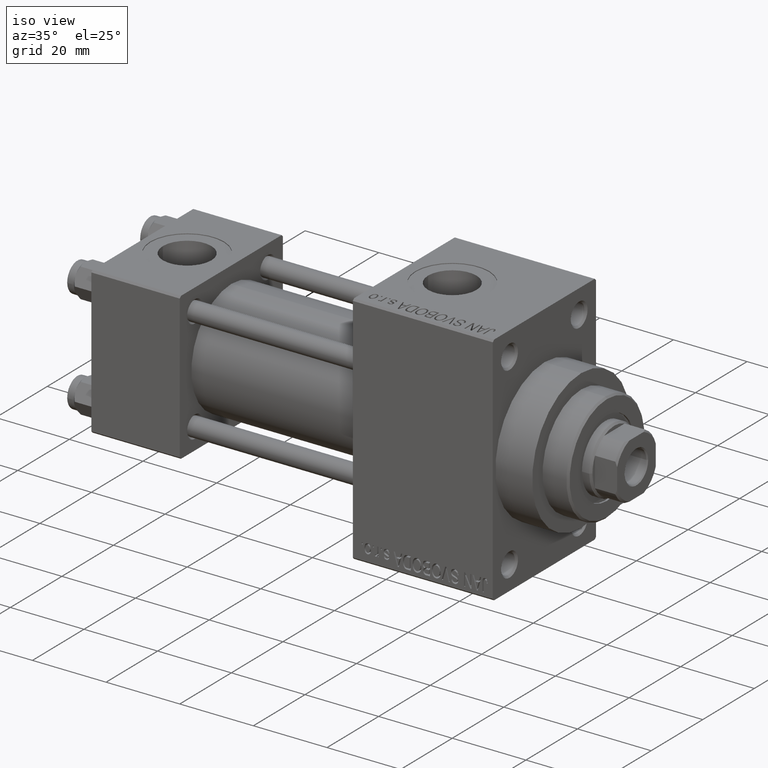
[diagram: clean part render]
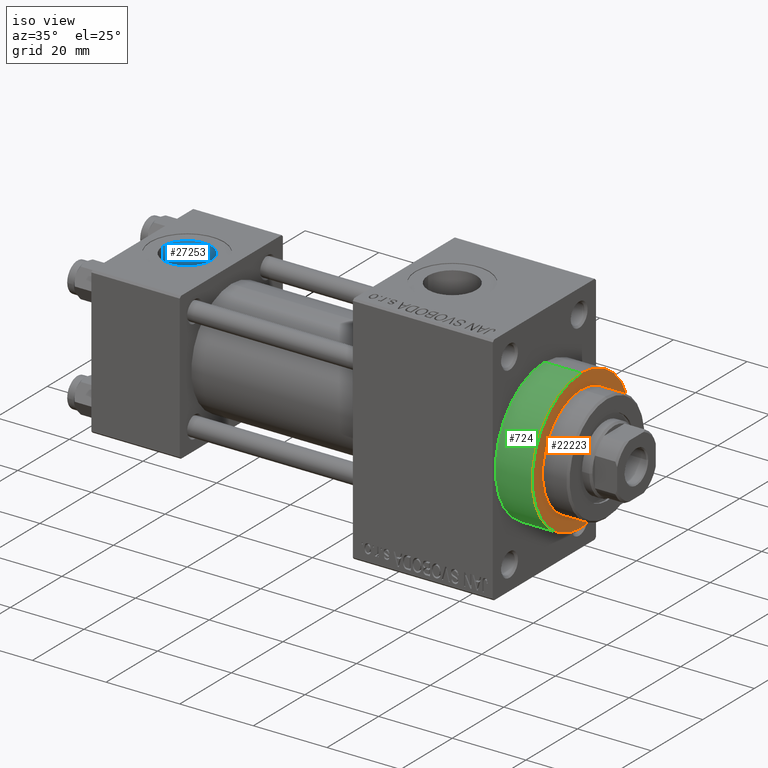
[diagram: same view with three faces highlighted in distinct colors, each labeled with its STEP entity id]
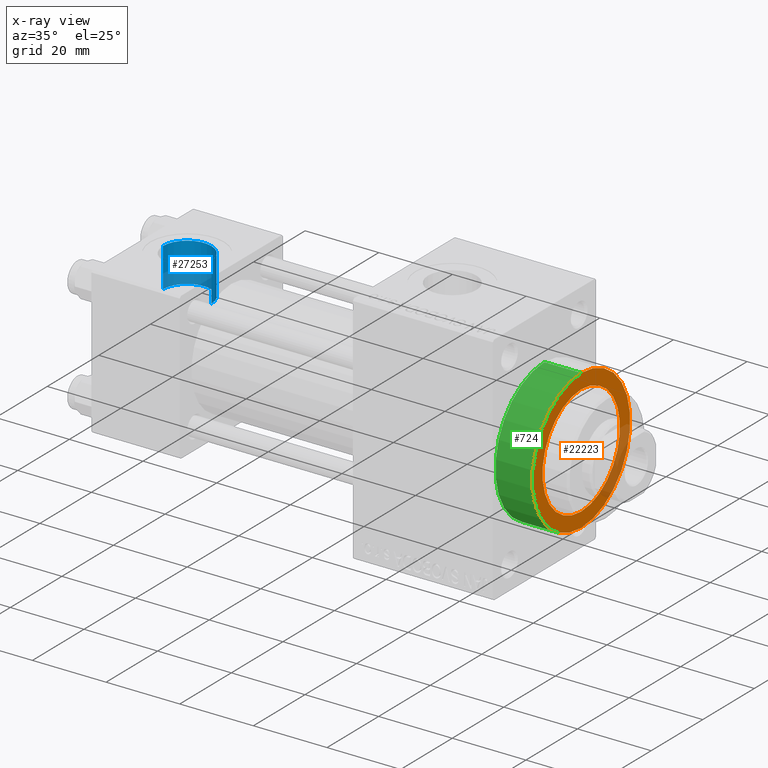
[diagram: x-ray of the same camera — body ghosted, the three highlighted faces saturated]
A machine part, iso view with three faces highlighted in distinct colors.
The next image is the same camera in x-ray (body ghosted, the three faces saturated) — at least one of them is partly hidden behind the body in this view.
Their STEP definitions:

[orange] entity #22223 — the highlighted planar face has unit normal (1, 0, 0).
#354 = AXIS2_PLACEMENT_3D ( 'NONE', #45953, #28199, #42982 ) ;
#2514 = DIRECTION ( 'NONE',  ( 1.000000000000000000, 0.000000000000000000, 0.000000000000000000 ) ) ;
#3104 = FACE_OUTER_BOUND ( 'NONE', #22787, .T. ) ;
#4674 = VERTEX_POINT ( 'NONE', #20267 ) ;
#9021 = EDGE_CURVE ( 'NONE', #31705, #4674, #21604, .T. ) ;
#9916 = DIRECTION ( 'NONE',  ( 0.000000000000000000, 0.000000000000000000, -1.000000000000000000 ) ) ;
#12551 = EDGE_CURVE ( 'NONE', #4674, #31705, #15337, .T. ) ;
#13365 = CARTESIAN_POINT ( 'NONE',  ( 119.0000000000000142, 0.000000000000000000, 0.000000000000000000 ) ) ;
#15337 = CIRCLE ( 'NONE', #42837, 19.00000000000000000 ) ;
#17429 = VERTEX_POINT ( 'NONE', #32329 ) ;
#17458 = DIRECTION ( 'NONE',  ( 1.000000000000000000, 0.000000000000000000, 0.000000000000000000 ) ) ;
#20267 = CARTESIAN_POINT ( 'NONE',  ( 119.0000000000000142, 2.326828918379970970E-15, -19.00000000000000000 ) ) ;
#20414 = CARTESIAN_POINT ( 'NONE',  ( 119.0000000000000142, 1.836970198721029589E-15, 15.00000000000000000 ) ) ;
#20463 = EDGE_LOOP ( 'NONE', ( #25133, #41568 ) ) ;
#21604 = CIRCLE ( 'NONE', #354, 19.00000000000000000 ) ;
#22223 = ADVANCED_FACE ( 'NONE', ( #29446, #3104 ), #33384, .T. ) ;
#22263 = CIRCLE ( 'NONE', #46661, 15.00000000000000000 ) ;
#22787 = EDGE_LOOP ( 'NONE', ( #34558, #30265 ) ) ;
#24339 = DIRECTION ( 'NONE',  ( 0.000000000000000000, 0.000000000000000000, -1.000000000000000000 ) ) ;
#25133 = ORIENTED_EDGE ( 'NONE', *, *, #30397, .F. ) ;
#25738 = DIRECTION ( 'NONE',  ( 1.000000000000000000, 0.000000000000000000, 0.000000000000000000 ) ) ;
#28199 = DIRECTION ( 'NONE',  ( 1.000000000000000000, 0.000000000000000000, 0.000000000000000000 ) ) ;
#29446 = FACE_BOUND ( 'NONE', #20463, .T. ) ;
#29682 = CARTESIAN_POINT ( 'NONE',  ( 119.0000000000000142, 0.000000000000000000, 0.000000000000000000 ) ) ;
#30257 = CARTESIAN_POINT ( 'NONE',  ( 119.0000000000000142, 0.000000000000000000, 19.00000000000000000 ) ) ;
#30265 = ORIENTED_EDGE ( 'NONE', *, *, #12551, .T. ) ;
#30397 = EDGE_CURVE ( 'NONE', #17429, #37067, #48006, .T. ) ;
#31705 = VERTEX_POINT ( 'NONE', #30257 ) ;
#32329 = CARTESIAN_POINT ( 'NONE',  ( 119.0000000000000142, 0.000000000000000000, -15.00000000000000000 ) ) ;
#33059 = AXIS2_PLACEMENT_3D ( 'NONE', #13365, #2514, #46845 ) ;
#33384 = PLANE ( 'NONE',  #33701 ) ;
#33701 = AXIS2_PLACEMENT_3D ( 'NONE', #29682, #25738, #40774 ) ;
#34558 = ORIENTED_EDGE ( 'NONE', *, *, #9021, .T. ) ;
#35763 = CARTESIAN_POINT ( 'NONE',  ( 119.0000000000000142, 0.000000000000000000, 0.000000000000000000 ) ) ;
#36749 = EDGE_CURVE ( 'NONE', #37067, #17429, #22263, .T. ) ;
#37067 = VERTEX_POINT ( 'NONE', #20414 ) ;
#39452 = DIRECTION ( 'NONE',  ( 1.000000000000000000, 0.000000000000000000, 0.000000000000000000 ) ) ;
#40774 = DIRECTION ( 'NONE',  ( 0.000000000000000000, 0.000000000000000000, -1.000000000000000000 ) ) ;
#41568 = ORIENTED_EDGE ( 'NONE', *, *, #36749, .F. ) ;
#42837 = AXIS2_PLACEMENT_3D ( 'NONE', #43057, #17458, #24339 ) ;
#42982 = DIRECTION ( 'NONE',  ( 0.000000000000000000, 0.000000000000000000, -1.000000000000000000 ) ) ;
#43057 = CARTESIAN_POINT ( 'NONE',  ( 119.0000000000000142, 0.000000000000000000, 0.000000000000000000 ) ) ;
#45953 = CARTESIAN_POINT ( 'NONE',  ( 119.0000000000000142, 0.000000000000000000, 0.000000000000000000 ) ) ;
#46661 = AXIS2_PLACEMENT_3D ( 'NONE', #35763, #39452, #9916 ) ;
#46845 = DIRECTION ( 'NONE',  ( 0.000000000000000000, 0.000000000000000000, -1.000000000000000000 ) ) ;
#48006 = CIRCLE ( 'NONE', #33059, 15.00000000000000000 ) ;

[blue] entity #27253 — the highlighted cylindrical surface (edge-blend (fillet) strip) has radius 6.58 mm, axis along (0, 0, 1).
#2444 = LINE ( 'NONE', #36420, #19747 ) ;
#3195 = CARTESIAN_POINT ( 'NONE',  ( 18.57999999999999829, 1.540743955509788682E-30, 19.79999999999999716 ) ) ;
#6367 = DIRECTION ( 'NONE',  ( -0.000000000000000000, -0.000000000000000000, -1.000000000000000000 ) ) ;
#6459 = ORIENTED_EDGE ( 'NONE', *, *, #33686, .T. ) ;
#6611 = AXIS2_PLACEMENT_3D ( 'NONE', #44253, #11489, #18147 ) ;
#10046 = EDGE_CURVE ( 'NONE', #28741, #31293, #21670, .T. ) ;
#10311 = AXIS2_PLACEMENT_3D ( 'NONE', #33049, #25172, #44620 ) ;
#10663 = FACE_OUTER_BOUND ( 'NONE', #14833, .T. ) ;
#11345 = EDGE_CURVE ( 'NONE', #28741, #22598, #31055, .T. ) ;
#11489 = DIRECTION ( 'NONE',  ( 0.000000000000000000, 0.000000000000000000, 1.000000000000000000 ) ) ;
#12380 = CARTESIAN_POINT ( 'NONE',  ( 5.420000000000000817, 8.058175938389596335E-16, 19.79999999999999716 ) ) ;
#13230 = ORIENTED_EDGE ( 'NONE', *, *, #11345, .F. ) ;
#14833 = EDGE_LOOP ( 'NONE', ( #13230, #39622, #6459, #43421 ) ) ;
#16984 = DIRECTION ( 'NONE',  ( -0.000000000000000000, -0.000000000000000000, 1.000000000000000000 ) ) ;
#18147 = DIRECTION ( 'NONE',  ( 1.000000000000000000, 0.000000000000000000, 0.000000000000000000 ) ) ;
#19747 = VECTOR ( 'NONE', #16984, 1000.000000000000000 ) ;
#21670 = CIRCLE ( 'NONE', #46832, 6.579999999999999183 ) ;
#22598 = VERTEX_POINT ( 'NONE', #12380 ) ;
#25172 = DIRECTION ( 'NONE',  ( -0.000000000000000000, -0.000000000000000000, 1.000000000000000000 ) ) ;
#25456 = CIRCLE ( 'NONE', #6611, 6.579999999999999183 ) ;
#25891 = CYLINDRICAL_SURFACE ( 'NONE', #10311, 6.579999999999999183 ) ;
#27253 = ADVANCED_FACE ( 'NONE', ( #10663 ), #25891, .F. ) ;
#27351 = DIRECTION ( 'NONE',  ( -0.000000000000000000, -0.000000000000000000, 1.000000000000000000 ) ) ;
#28741 = VERTEX_POINT ( 'NONE', #30229 ) ;
#30229 = CARTESIAN_POINT ( 'NONE',  ( 5.420000000000000817, 8.058175938389596335E-16, 9.165987261146492315 ) ) ;
#31055 = LINE ( 'NONE', #46326, #33502 ) ;
#31293 = VERTEX_POINT ( 'NONE', #37456 ) ;
#33049 = CARTESIAN_POINT ( 'NONE',  ( 12.00000000000000000, 1.540743955509788682E-30, 9.199999999999995737 ) ) ;
#33502 = VECTOR ( 'NONE', #27351, 1000.000000000000000 ) ;
#33686 = EDGE_CURVE ( 'NONE', #31293, #47603, #2444, .T. ) ;
#36420 = CARTESIAN_POINT ( 'NONE',  ( 18.57999999999999829, 1.540743955509788682E-30, 9.199999999999995737 ) ) ;
#37456 = CARTESIAN_POINT ( 'NONE',  ( 18.57999999999999829, 1.540743955509788682E-30, 9.165987261146492315 ) ) ;
#38447 = EDGE_CURVE ( 'NONE', #47603, #22598, #25456, .T. ) ;
#39622 = ORIENTED_EDGE ( 'NONE', *, *, #10046, .T. ) ;
#42800 = CARTESIAN_POINT ( 'NONE',  ( 12.00000000000000000, 1.540743955509788682E-30, 9.165987261146492315 ) ) ;
#43290 = DIRECTION ( 'NONE',  ( 1.000000000000000000, 0.000000000000000000, 0.000000000000000000 ) ) ;
#43421 = ORIENTED_EDGE ( 'NONE', *, *, #38447, .T. ) ;
#44253 = CARTESIAN_POINT ( 'NONE',  ( 12.00000000000000000, 1.540743955509788682E-30, 19.79999999999999716 ) ) ;
#44620 = DIRECTION ( 'NONE',  ( 1.000000000000000000, 0.000000000000000000, 0.000000000000000000 ) ) ;
#46326 = CARTESIAN_POINT ( 'NONE',  ( 5.420000000000000817, 8.058175938389596335E-16, 9.199999999999995737 ) ) ;
#46832 = AXIS2_PLACEMENT_3D ( 'NONE', #42800, #6367, #43290 ) ;
#47603 = VERTEX_POINT ( 'NONE', #3195 ) ;

[green] entity #724 — the highlighted cylindrical surface (partial cylindrical patch) has radius 19 mm, axis along (-1, -0, -0).
#354 = AXIS2_PLACEMENT_3D ( 'NONE', #45953, #28199, #42982 ) ;
#724 = ADVANCED_FACE ( 'NONE', ( #16598 ), #9231, .T. ) ;
#2218 = DIRECTION ( 'NONE',  ( 1.000000000000000000, 0.000000000000000000, 0.000000000000000000 ) ) ;
#4674 = VERTEX_POINT ( 'NONE', #20267 ) ;
#5204 = CARTESIAN_POINT ( 'NONE',  ( 109.0000000000000142, 0.000000000000000000, 19.00000000000000000 ) ) ;
#5513 = CIRCLE ( 'NONE', #14980, 19.00000000000000000 ) ;
#6790 = LINE ( 'NONE', #32884, #20229 ) ;
#9021 = EDGE_CURVE ( 'NONE', #31705, #4674, #21604, .T. ) ;
#9231 = CYLINDRICAL_SURFACE ( 'NONE', #33921, 19.00000000000000000 ) ;
#10668 = VERTEX_POINT ( 'NONE', #5204 ) ;
#14980 = AXIS2_PLACEMENT_3D ( 'NONE', #47288, #2218, #17248 ) ;
#15219 = CARTESIAN_POINT ( 'NONE',  ( 109.0000000000000142, 2.326828918379970970E-15, -19.00000000000000000 ) ) ;
#16529 = ORIENTED_EDGE ( 'NONE', *, *, #45673, .F. ) ;
#16598 = FACE_OUTER_BOUND ( 'NONE', #20422, .T. ) ;
#17248 = DIRECTION ( 'NONE',  ( 0.000000000000000000, 0.000000000000000000, -1.000000000000000000 ) ) ;
#17583 = LINE ( 'NONE', #39250, #19139 ) ;
#19139 = VECTOR ( 'NONE', #31609, 1000.000000000000000 ) ;
#20046 = DIRECTION ( 'NONE',  ( -1.000000000000000000, -0.000000000000000000, -0.000000000000000000 ) ) ;
#20111 = EDGE_CURVE ( 'NONE', #31705, #10668, #6790, .T. ) ;
#20229 = VECTOR ( 'NONE', #29185, 1000.000000000000000 ) ;
#20267 = CARTESIAN_POINT ( 'NONE',  ( 119.0000000000000142, 2.326828918379970970E-15, -19.00000000000000000 ) ) ;
#20422 = EDGE_LOOP ( 'NONE', ( #16529, #41866, #38425, #38913 ) ) ;
#21604 = CIRCLE ( 'NONE', #354, 19.00000000000000000 ) ;
#26677 = EDGE_CURVE ( 'NONE', #10668, #28708, #5513, .T. ) ;
#28199 = DIRECTION ( 'NONE',  ( 1.000000000000000000, 0.000000000000000000, 0.000000000000000000 ) ) ;
#28708 = VERTEX_POINT ( 'NONE', #15219 ) ;
#29185 = DIRECTION ( 'NONE',  ( -1.000000000000000000, -0.000000000000000000, -0.000000000000000000 ) ) ;
#30257 = CARTESIAN_POINT ( 'NONE',  ( 119.0000000000000142, 0.000000000000000000, 19.00000000000000000 ) ) ;
#31609 = DIRECTION ( 'NONE',  ( -1.000000000000000000, -0.000000000000000000, -0.000000000000000000 ) ) ;
#31705 = VERTEX_POINT ( 'NONE', #30257 ) ;
#32884 = CARTESIAN_POINT ( 'NONE',  ( 119.0000000000000142, 0.000000000000000000, 19.00000000000000000 ) ) ;
#33921 = AXIS2_PLACEMENT_3D ( 'NONE', #42946, #20046, #46900 ) ;
#38425 = ORIENTED_EDGE ( 'NONE', *, *, #20111, .T. ) ;
#38913 = ORIENTED_EDGE ( 'NONE', *, *, #26677, .T. ) ;
#39250 = CARTESIAN_POINT ( 'NONE',  ( 119.0000000000000142, 2.326828918379970970E-15, -19.00000000000000000 ) ) ;
#41866 = ORIENTED_EDGE ( 'NONE', *, *, #9021, .F. ) ;
#42946 = CARTESIAN_POINT ( 'NONE',  ( 119.0000000000000142, 0.000000000000000000, 0.000000000000000000 ) ) ;
#42982 = DIRECTION ( 'NONE',  ( 0.000000000000000000, 0.000000000000000000, -1.000000000000000000 ) ) ;
#45673 = EDGE_CURVE ( 'NONE', #4674, #28708, #17583, .T. ) ;
#45953 = CARTESIAN_POINT ( 'NONE',  ( 119.0000000000000142, 0.000000000000000000, 0.000000000000000000 ) ) ;
#46900 = DIRECTION ( 'NONE',  ( 0.000000000000000000, 0.000000000000000000, 1.000000000000000000 ) ) ;
#47288 = CARTESIAN_POINT ( 'NONE',  ( 109.0000000000000142, 0.000000000000000000, 0.000000000000000000 ) ) ;